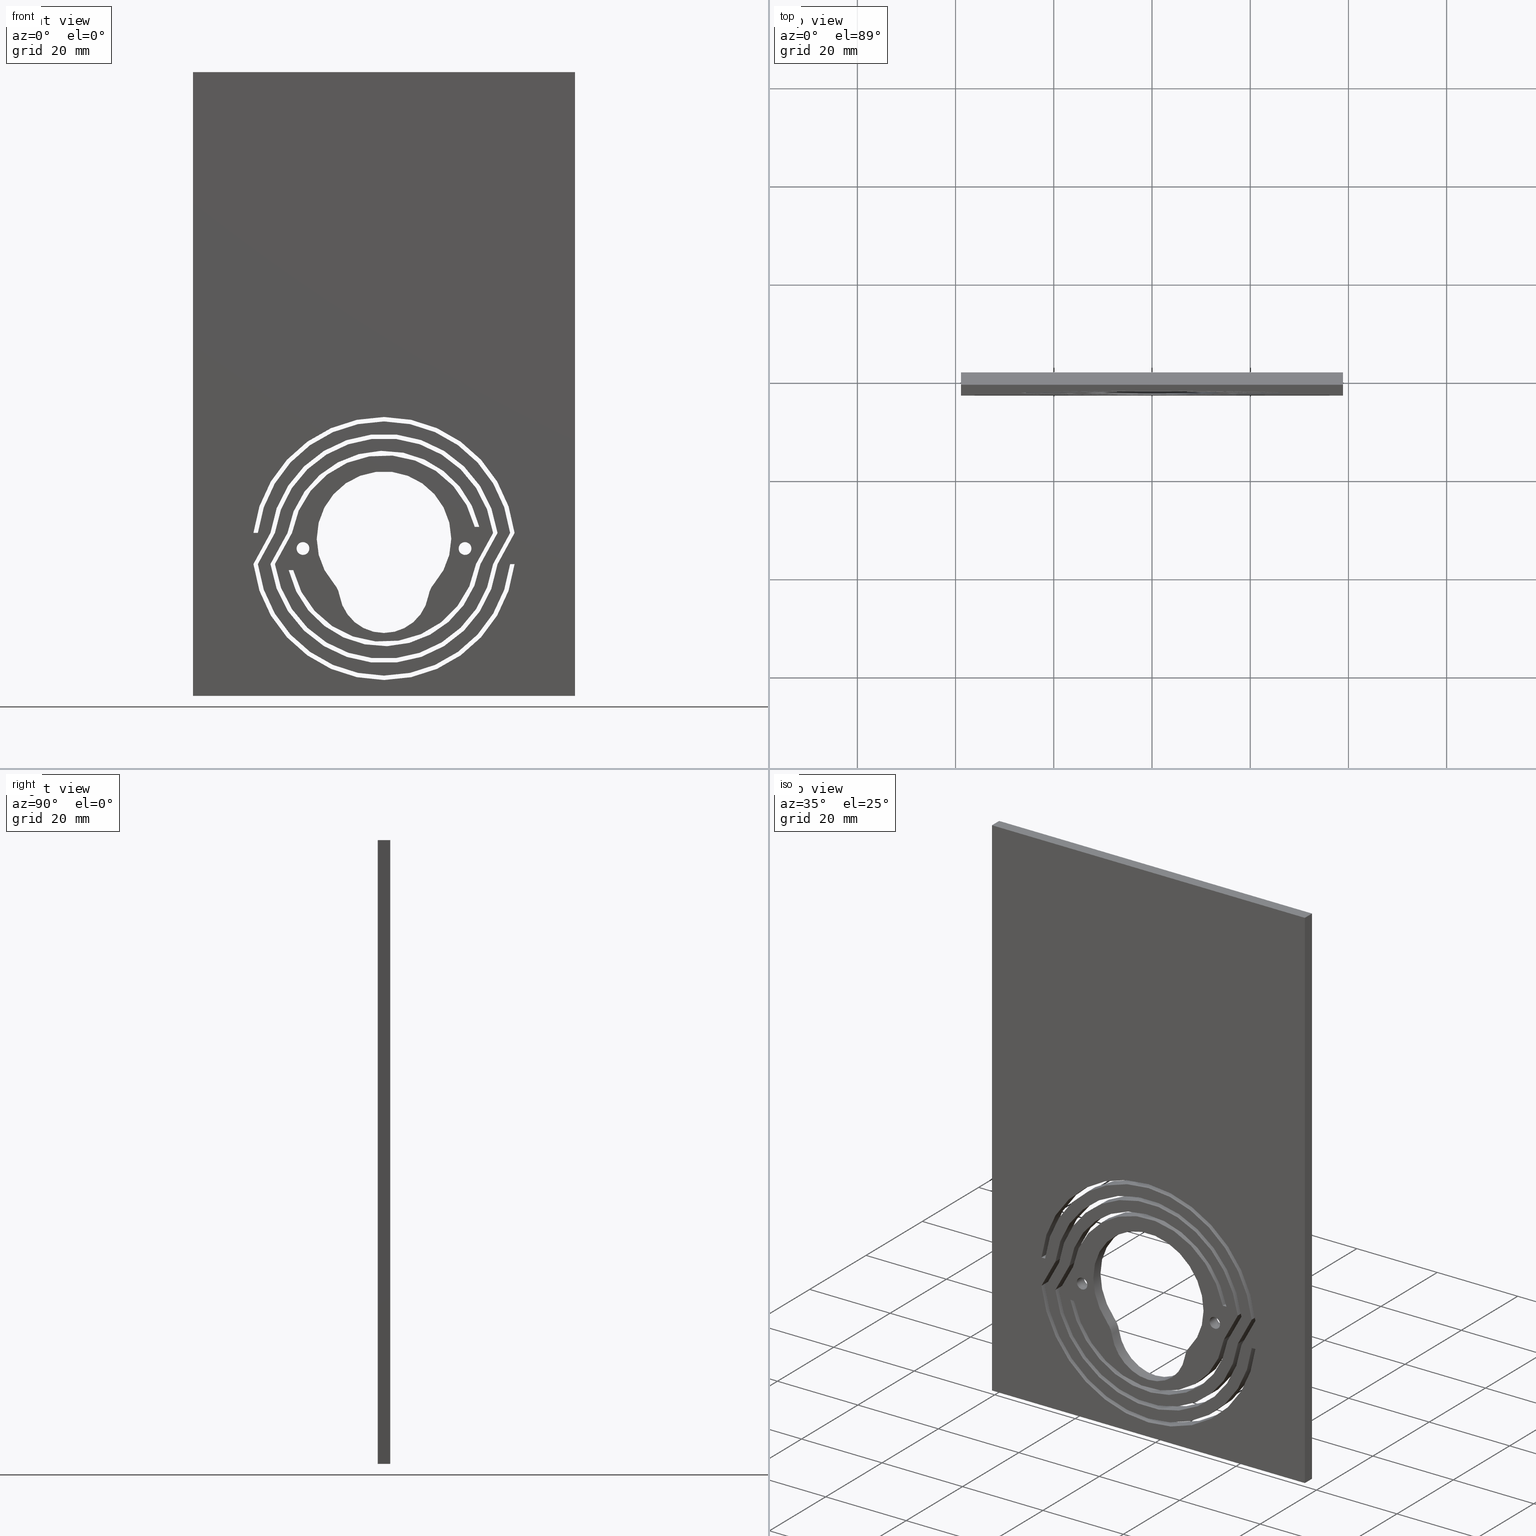
[diagram: canonical four-view strip — front | top / right | iso, engineering-drawing reading convention]
A machine part, canonical four-view strip (front | top / right | iso — engineering-drawing reading convention). The complete STEP part file that produces these views, byte-faithful:
ISO-10303-21;
HEADER;
/* Generated by software containing ST-Developer
 * from STEP Tools, Inc. (www.steptools.com) 
 */

FILE_DESCRIPTION(
/* description */ (''),
/* implementation_level */ '2;1');

FILE_NAME(
/* name */ 'panel_low_v66.step',
/* time_stamp */ '2024-05-29T17:00:07-04:00',
/* author */ (''),
/* organization */ (''),
/* preprocessor_version */ 'ST-DEVELOPER v20',
/* originating_system */ 'Autodesk Translation Framework v13.14.0.145',

/* authorisation */ '');

FILE_SCHEMA (('AUTOMOTIVE_DESIGN { 1 0 10303 214 3 1 1 }'));
ENDSEC;

DATA;
#10=MECHANICAL_DESIGN_GEOMETRIC_PRESENTATION_REPRESENTATION('',(#17),#1243);
#11=ITEM_DEFINED_TRANSFORMATION($,$,#739,#812);
#12=(
REPRESENTATION_RELATIONSHIP($,$,#1254,#1253)
REPRESENTATION_RELATIONSHIP_WITH_TRANSFORMATION(#11)
SHAPE_REPRESENTATION_RELATIONSHIP()
);
#13=CONTEXT_DEPENDENT_SHAPE_REPRESENTATION(#12,#1252);
#14=NEXT_ASSEMBLY_USAGE_OCCURRENCE('panel:1','panel:1','panel:1',#1256,
#1257,'panel:1');
#15=SHAPE_REPRESENTATION_RELATIONSHIP('SRR','None',#1254,#16);
#16=ADVANCED_BREP_SHAPE_REPRESENTATION('',(#18),#1242);
#17=STYLED_ITEM('',(#1267),#18);
#18=MANIFOLD_SOLID_BREP('Body5',#725);
#19=FACE_BOUND('',#118,.T.);
#20=FACE_BOUND('',#119,.T.);
#21=FACE_BOUND('',#120,.T.);
#22=FACE_BOUND('',#121,.T.);
#23=FACE_BOUND('',#122,.T.);
#24=FACE_BOUND('',#124,.T.);
#25=FACE_BOUND('',#125,.T.);
#26=FACE_BOUND('',#126,.T.);
#27=FACE_BOUND('',#127,.T.);
#28=FACE_BOUND('',#128,.T.);
#29=PLANE('',#761);
#30=PLANE('',#765);
#31=PLANE('',#769);
#32=PLANE('',#773);
#33=PLANE('',#777);
#34=PLANE('',#781);
#35=PLANE('',#782);
#36=PLANE('',#786);
#37=PLANE('',#790);
#38=PLANE('',#794);
#39=PLANE('',#798);
#40=PLANE('',#802);
#41=PLANE('',#806);
#42=PLANE('',#807);
#43=PLANE('',#808);
#44=PLANE('',#809);
#45=PLANE('',#810);
#46=PLANE('',#811);
#47=FACE_OUTER_BOUND('',#83,.T.);
#48=FACE_OUTER_BOUND('',#84,.T.);
#49=FACE_OUTER_BOUND('',#85,.T.);
#50=FACE_OUTER_BOUND('',#86,.T.);
#51=FACE_OUTER_BOUND('',#87,.T.);
#52=FACE_OUTER_BOUND('',#88,.T.);
#53=FACE_OUTER_BOUND('',#89,.T.);
#54=FACE_OUTER_BOUND('',#90,.T.);
#55=FACE_OUTER_BOUND('',#91,.T.);
#56=FACE_OUTER_BOUND('',#92,.T.);
#57=FACE_OUTER_BOUND('',#93,.T.);
#58=FACE_OUTER_BOUND('',#94,.T.);
#59=FACE_OUTER_BOUND('',#95,.T.);
#60=FACE_OUTER_BOUND('',#96,.T.);
#61=FACE_OUTER_BOUND('',#97,.T.);
#62=FACE_OUTER_BOUND('',#98,.T.);
#63=FACE_OUTER_BOUND('',#99,.T.);
#64=FACE_OUTER_BOUND('',#100,.T.);
#65=FACE_OUTER_BOUND('',#101,.T.);
#66=FACE_OUTER_BOUND('',#102,.T.);
#67=FACE_OUTER_BOUND('',#103,.T.);
#68=FACE_OUTER_BOUND('',#104,.T.);
#69=FACE_OUTER_BOUND('',#105,.T.);
#70=FACE_OUTER_BOUND('',#106,.T.);
#71=FACE_OUTER_BOUND('',#107,.T.);
#72=FACE_OUTER_BOUND('',#108,.T.);
#73=FACE_OUTER_BOUND('',#109,.T.);
#74=FACE_OUTER_BOUND('',#110,.T.);
#75=FACE_OUTER_BOUND('',#111,.T.);
#76=FACE_OUTER_BOUND('',#112,.T.);
#77=FACE_OUTER_BOUND('',#113,.T.);
#78=FACE_OUTER_BOUND('',#114,.T.);
#79=FACE_OUTER_BOUND('',#115,.T.);
#80=FACE_OUTER_BOUND('',#116,.T.);
#81=FACE_OUTER_BOUND('',#117,.T.);
#82=FACE_OUTER_BOUND('',#123,.T.);
#83=EDGE_LOOP('',(#467,#468,#469,#470));
#84=EDGE_LOOP('',(#471,#472,#473,#474));
#85=EDGE_LOOP('',(#475,#476,#477,#478));
#86=EDGE_LOOP('',(#479,#480,#481,#482));
#87=EDGE_LOOP('',(#483,#484,#485,#486));
#88=EDGE_LOOP('',(#487,#488,#489,#490));
#89=EDGE_LOOP('',(#491,#492,#493,#494));
#90=EDGE_LOOP('',(#495,#496,#497,#498));
#91=EDGE_LOOP('',(#499,#500,#501,#502));
#92=EDGE_LOOP('',(#503,#504,#505,#506));
#93=EDGE_LOOP('',(#507,#508,#509,#510));
#94=EDGE_LOOP('',(#511,#512,#513,#514));
#95=EDGE_LOOP('',(#515,#516,#517,#518));
#96=EDGE_LOOP('',(#519,#520,#521,#522));
#97=EDGE_LOOP('',(#523,#524,#525,#526));
#98=EDGE_LOOP('',(#527,#528,#529,#530));
#99=EDGE_LOOP('',(#531,#532,#533,#534));
#100=EDGE_LOOP('',(#535,#536,#537,#538));
#101=EDGE_LOOP('',(#539,#540,#541,#542));
#102=EDGE_LOOP('',(#543,#544,#545,#546));
#103=EDGE_LOOP('',(#547,#548,#549,#550));
#104=EDGE_LOOP('',(#551,#552,#553,#554));
#105=EDGE_LOOP('',(#555,#556,#557,#558));
#106=EDGE_LOOP('',(#559,#560,#561,#562));
#107=EDGE_LOOP('',(#563,#564,#565,#566));
#108=EDGE_LOOP('',(#567,#568,#569,#570));
#109=EDGE_LOOP('',(#571,#572,#573,#574));
#110=EDGE_LOOP('',(#575,#576,#577,#578));
#111=EDGE_LOOP('',(#579,#580,#581,#582));
#112=EDGE_LOOP('',(#583,#584,#585,#586));
#113=EDGE_LOOP('',(#587,#588,#589,#590));
#114=EDGE_LOOP('',(#591,#592,#593,#594));
#115=EDGE_LOOP('',(#595,#596,#597,#598));
#116=EDGE_LOOP('',(#599,#600,#601,#602));
#117=EDGE_LOOP('',(#603,#604,#605,#606));
#118=EDGE_LOOP('',(#607));
#119=EDGE_LOOP('',(#608));
#120=EDGE_LOOP('',(#609,#610,#611,#612));
#121=EDGE_LOOP('',(#613,#614,#615,#616,#617,#618,#619,#620,#621,#622,#623,
#624));
#122=EDGE_LOOP('',(#625,#626,#627,#628,#629,#630,#631,#632,#633,#634,#635,
#636));
#123=EDGE_LOOP('',(#637,#638,#639,#640));
#124=EDGE_LOOP('',(#641));
#125=EDGE_LOOP('',(#642));
#126=EDGE_LOOP('',(#643,#644,#645,#646));
#127=EDGE_LOOP('',(#647,#648,#649,#650,#651,#652,#653,#654,#655,#656,#657,
#658));
#128=EDGE_LOOP('',(#659,#660,#661,#662,#663,#664,#665,#666,#667,#668,#669,
#670));
#129=LINE('',#1035,#195);
#130=LINE('',#1041,#196);
#131=LINE('',#1048,#197);
#132=LINE('',#1051,#198);
#133=LINE('',#1057,#199);
#134=LINE('',#1063,#200);
#135=LINE('',#1072,#201);
#136=LINE('',#1075,#202);
#137=LINE('',#1078,#203);
#138=LINE('',#1080,#204);
#139=LINE('',#1081,#205);
#140=LINE('',#1087,#206);
#141=LINE('',#1090,#207);
#142=LINE('',#1092,#208);
#143=LINE('',#1093,#209);
#144=LINE('',#1099,#210);
#145=LINE('',#1102,#211);
#146=LINE('',#1104,#212);
#147=LINE('',#1105,#213);
#148=LINE('',#1111,#214);
#149=LINE('',#1114,#215);
#150=LINE('',#1116,#216);
#151=LINE('',#1117,#217);
#152=LINE('',#1123,#218);
#153=LINE('',#1126,#219);
#154=LINE('',#1128,#220);
#155=LINE('',#1129,#221);
#156=LINE('',#1135,#222);
#157=LINE('',#1137,#223);
#158=LINE('',#1138,#224);
#159=LINE('',#1142,#225);
#160=LINE('',#1144,#226);
#161=LINE('',#1146,#227);
#162=LINE('',#1147,#228);
#163=LINE('',#1153,#229);
#164=LINE('',#1156,#230);
#165=LINE('',#1158,#231);
#166=LINE('',#1159,#232);
#167=LINE('',#1165,#233);
#168=LINE('',#1168,#234);
#169=LINE('',#1170,#235);
#170=LINE('',#1171,#236);
#171=LINE('',#1177,#237);
#172=LINE('',#1180,#238);
#173=LINE('',#1182,#239);
#174=LINE('',#1183,#240);
#175=LINE('',#1189,#241);
#176=LINE('',#1192,#242);
#177=LINE('',#1194,#243);
#178=LINE('',#1195,#244);
#179=LINE('',#1201,#245);
#180=LINE('',#1204,#246);
#181=LINE('',#1206,#247);
#182=LINE('',#1207,#248);
#183=LINE('',#1214,#249);
#184=LINE('',#1216,#250);
#185=LINE('',#1218,#251);
#186=LINE('',#1219,#252);
#187=LINE('',#1222,#253);
#188=LINE('',#1224,#254);
#189=LINE('',#1225,#255);
#190=LINE('',#1228,#256);
#191=LINE('',#1230,#257);
#192=LINE('',#1231,#258);
#193=LINE('',#1233,#259);
#194=LINE('',#1234,#260);
#195=VECTOR('',#821,1.3);
#196=VECTOR('',#828,1.3);
#197=VECTOR('',#835,10.);
#198=VECTOR('',#838,10.);
#199=VECTOR('',#845,10.);
#200=VECTOR('',#852,10.);
#201=VECTOR('',#863,10.);
#202=VECTOR('',#866,10.);
#203=VECTOR('',#869,10.);
#204=VECTOR('',#870,10.);
#205=VECTOR('',#871,10.);
#206=VECTOR('',#878,10.);
#207=VECTOR('',#881,10.);
#208=VECTOR('',#882,10.);
#209=VECTOR('',#883,10.);
#210=VECTOR('',#890,10.);
#211=VECTOR('',#893,10.);
#212=VECTOR('',#894,10.);
#213=VECTOR('',#895,10.);
#214=VECTOR('',#902,10.);
#215=VECTOR('',#905,10.);
#216=VECTOR('',#906,10.);
#217=VECTOR('',#907,10.);
#218=VECTOR('',#914,10.);
#219=VECTOR('',#917,10.);
#220=VECTOR('',#918,10.);
#221=VECTOR('',#919,10.);
#222=VECTOR('',#926,10.);
#223=VECTOR('',#929,10.);
#224=VECTOR('',#930,10.);
#225=VECTOR('',#933,10.);
#226=VECTOR('',#934,10.);
#227=VECTOR('',#935,10.);
#228=VECTOR('',#936,10.);
#229=VECTOR('',#943,10.);
#230=VECTOR('',#946,10.);
#231=VECTOR('',#947,10.);
#232=VECTOR('',#948,10.);
#233=VECTOR('',#955,10.);
#234=VECTOR('',#958,10.);
#235=VECTOR('',#959,10.);
#236=VECTOR('',#960,10.);
#237=VECTOR('',#967,10.);
#238=VECTOR('',#970,10.);
#239=VECTOR('',#971,10.);
#240=VECTOR('',#972,10.);
#241=VECTOR('',#979,10.);
#242=VECTOR('',#982,10.);
#243=VECTOR('',#983,10.);
#244=VECTOR('',#984,10.);
#245=VECTOR('',#991,10.);
#246=VECTOR('',#994,10.);
#247=VECTOR('',#995,10.);
#248=VECTOR('',#996,10.);
#249=VECTOR('',#1005,10.);
#250=VECTOR('',#1006,10.);
#251=VECTOR('',#1007,10.);
#252=VECTOR('',#1008,10.);
#253=VECTOR('',#1011,10.);
#254=VECTOR('',#1012,10.);
#255=VECTOR('',#1013,10.);
#256=VECTOR('',#1016,10.);
#257=VECTOR('',#1017,10.);
#258=VECTOR('',#1018,10.);
#259=VECTOR('',#1021,10.);
#260=VECTOR('',#1022,10.);
#261=CIRCLE('',#741,1.3);
#262=CIRCLE('',#742,1.3);
#263=CIRCLE('',#744,1.3);
#264=CIRCLE('',#745,1.3);
#265=CIRCLE('',#747,4.8);
#266=CIRCLE('',#748,4.8);
#267=CIRCLE('',#750,13.7);
#268=CIRCLE('',#751,13.7);
#269=CIRCLE('',#753,4.8);
#270=CIRCLE('',#754,4.8);
#271=CIRCLE('',#756,9.20000000000001);
#272=CIRCLE('',#757,9.20000000000001);
#273=CIRCLE('',#759,19.9);
#274=CIRCLE('',#760,19.9);
#275=CIRCLE('',#763,19.);
#276=CIRCLE('',#764,19.);
#277=CIRCLE('',#767,22.44);
#278=CIRCLE('',#768,22.44);
#279=CIRCLE('',#771,25.88);
#280=CIRCLE('',#772,25.88);
#281=CIRCLE('',#775,26.78);
#282=CIRCLE('',#776,26.78);
#283=CIRCLE('',#779,23.34);
#284=CIRCLE('',#780,23.34);
#285=CIRCLE('',#784,25.88);
#286=CIRCLE('',#785,25.88);
#287=CIRCLE('',#788,26.78);
#288=CIRCLE('',#789,26.78);
#289=CIRCLE('',#792,23.34);
#290=CIRCLE('',#793,23.34);
#291=CIRCLE('',#796,19.9);
#292=CIRCLE('',#797,19.9);
#293=CIRCLE('',#800,19.);
#294=CIRCLE('',#801,19.);
#295=CIRCLE('',#804,22.44);
#296=CIRCLE('',#805,22.44);
#297=VERTEX_POINT('',#1032);
#298=VERTEX_POINT('',#1034);
#299=VERTEX_POINT('',#1038);
#300=VERTEX_POINT('',#1040);
#301=VERTEX_POINT('',#1044);
#302=VERTEX_POINT('',#1045);
#303=VERTEX_POINT('',#1047);
#304=VERTEX_POINT('',#1049);
#305=VERTEX_POINT('',#1053);
#306=VERTEX_POINT('',#1055);
#307=VERTEX_POINT('',#1059);
#308=VERTEX_POINT('',#1061);
#309=VERTEX_POINT('',#1068);
#310=VERTEX_POINT('',#1069);
#311=VERTEX_POINT('',#1071);
#312=VERTEX_POINT('',#1073);
#313=VERTEX_POINT('',#1077);
#314=VERTEX_POINT('',#1079);
#315=VERTEX_POINT('',#1083);
#316=VERTEX_POINT('',#1085);
#317=VERTEX_POINT('',#1089);
#318=VERTEX_POINT('',#1091);
#319=VERTEX_POINT('',#1095);
#320=VERTEX_POINT('',#1097);
#321=VERTEX_POINT('',#1101);
#322=VERTEX_POINT('',#1103);
#323=VERTEX_POINT('',#1107);
#324=VERTEX_POINT('',#1109);
#325=VERTEX_POINT('',#1113);
#326=VERTEX_POINT('',#1115);
#327=VERTEX_POINT('',#1119);
#328=VERTEX_POINT('',#1121);
#329=VERTEX_POINT('',#1125);
#330=VERTEX_POINT('',#1127);
#331=VERTEX_POINT('',#1131);
#332=VERTEX_POINT('',#1133);
#333=VERTEX_POINT('',#1140);
#334=VERTEX_POINT('',#1141);
#335=VERTEX_POINT('',#1143);
#336=VERTEX_POINT('',#1145);
#337=VERTEX_POINT('',#1149);
#338=VERTEX_POINT('',#1151);
#339=VERTEX_POINT('',#1155);
#340=VERTEX_POINT('',#1157);
#341=VERTEX_POINT('',#1161);
#342=VERTEX_POINT('',#1163);
#343=VERTEX_POINT('',#1167);
#344=VERTEX_POINT('',#1169);
#345=VERTEX_POINT('',#1173);
#346=VERTEX_POINT('',#1175);
#347=VERTEX_POINT('',#1179);
#348=VERTEX_POINT('',#1181);
#349=VERTEX_POINT('',#1185);
#350=VERTEX_POINT('',#1187);
#351=VERTEX_POINT('',#1191);
#352=VERTEX_POINT('',#1193);
#353=VERTEX_POINT('',#1197);
#354=VERTEX_POINT('',#1199);
#355=VERTEX_POINT('',#1203);
#356=VERTEX_POINT('',#1205);
#357=VERTEX_POINT('',#1212);
#358=VERTEX_POINT('',#1213);
#359=VERTEX_POINT('',#1215);
#360=VERTEX_POINT('',#1217);
#361=VERTEX_POINT('',#1221);
#362=VERTEX_POINT('',#1223);
#363=VERTEX_POINT('',#1227);
#364=VERTEX_POINT('',#1229);
#365=EDGE_CURVE('',#297,#297,#261,.T.);
#366=EDGE_CURVE('',#297,#298,#129,.T.);
#367=EDGE_CURVE('',#298,#298,#262,.T.);
#368=EDGE_CURVE('',#299,#299,#263,.T.);
#369=EDGE_CURVE('',#299,#300,#130,.T.);
#370=EDGE_CURVE('',#300,#300,#264,.T.);
#371=EDGE_CURVE('',#301,#302,#265,.T.);
#372=EDGE_CURVE('',#303,#301,#131,.T.);
#373=EDGE_CURVE('',#304,#303,#266,.T.);
#374=EDGE_CURVE('',#304,#302,#132,.T.);
#375=EDGE_CURVE('',#302,#305,#267,.T.);
#376=EDGE_CURVE('',#306,#304,#268,.T.);
#377=EDGE_CURVE('',#306,#305,#133,.T.);
#378=EDGE_CURVE('',#305,#307,#269,.T.);
#379=EDGE_CURVE('',#308,#306,#270,.T.);
#380=EDGE_CURVE('',#308,#307,#134,.T.);
#381=EDGE_CURVE('',#307,#301,#271,.T.);
#382=EDGE_CURVE('',#303,#308,#272,.T.);
#383=EDGE_CURVE('',#309,#310,#273,.T.);
#384=EDGE_CURVE('',#311,#309,#135,.T.);
#385=EDGE_CURVE('',#312,#311,#274,.T.);
#386=EDGE_CURVE('',#312,#310,#136,.T.);
#387=EDGE_CURVE('',#310,#313,#137,.T.);
#388=EDGE_CURVE('',#314,#312,#138,.T.);
#389=EDGE_CURVE('',#314,#313,#139,.T.);
#390=EDGE_CURVE('',#313,#315,#275,.T.);
#391=EDGE_CURVE('',#316,#314,#276,.T.);
#392=EDGE_CURVE('',#316,#315,#140,.T.);
#393=EDGE_CURVE('',#315,#317,#141,.T.);
#394=EDGE_CURVE('',#318,#316,#142,.T.);
#395=EDGE_CURVE('',#318,#317,#143,.T.);
#396=EDGE_CURVE('',#317,#319,#277,.T.);
#397=EDGE_CURVE('',#320,#318,#278,.T.);
#398=EDGE_CURVE('',#320,#319,#144,.T.);
#399=EDGE_CURVE('',#319,#321,#145,.T.);
#400=EDGE_CURVE('',#322,#320,#146,.T.);
#401=EDGE_CURVE('',#322,#321,#147,.T.);
#402=EDGE_CURVE('',#321,#323,#279,.T.);
#403=EDGE_CURVE('',#324,#322,#280,.T.);
#404=EDGE_CURVE('',#324,#323,#148,.T.);
#405=EDGE_CURVE('',#323,#325,#149,.T.);
#406=EDGE_CURVE('',#326,#324,#150,.T.);
#407=EDGE_CURVE('',#326,#325,#151,.T.);
#408=EDGE_CURVE('',#325,#327,#281,.T.);
#409=EDGE_CURVE('',#328,#326,#282,.T.);
#410=EDGE_CURVE('',#328,#327,#152,.T.);
#411=EDGE_CURVE('',#327,#329,#153,.T.);
#412=EDGE_CURVE('',#330,#328,#154,.T.);
#413=EDGE_CURVE('',#330,#329,#155,.T.);
#414=EDGE_CURVE('',#329,#331,#283,.T.);
#415=EDGE_CURVE('',#332,#330,#284,.T.);
#416=EDGE_CURVE('',#332,#331,#156,.T.);
#417=EDGE_CURVE('',#331,#309,#157,.T.);
#418=EDGE_CURVE('',#311,#332,#158,.T.);
#419=EDGE_CURVE('',#333,#334,#159,.T.);
#420=EDGE_CURVE('',#335,#333,#160,.T.);
#421=EDGE_CURVE('',#336,#335,#161,.T.);
#422=EDGE_CURVE('',#336,#334,#162,.T.);
#423=EDGE_CURVE('',#334,#337,#285,.T.);
#424=EDGE_CURVE('',#338,#336,#286,.T.);
#425=EDGE_CURVE('',#338,#337,#163,.T.);
#426=EDGE_CURVE('',#337,#339,#164,.T.);
#427=EDGE_CURVE('',#340,#338,#165,.T.);
#428=EDGE_CURVE('',#340,#339,#166,.T.);
#429=EDGE_CURVE('',#339,#341,#287,.T.);
#430=EDGE_CURVE('',#342,#340,#288,.T.);
#431=EDGE_CURVE('',#342,#341,#167,.T.);
#432=EDGE_CURVE('',#341,#343,#168,.T.);
#433=EDGE_CURVE('',#344,#342,#169,.T.);
#434=EDGE_CURVE('',#344,#343,#170,.T.);
#435=EDGE_CURVE('',#343,#345,#289,.T.);
#436=EDGE_CURVE('',#346,#344,#290,.T.);
#437=EDGE_CURVE('',#346,#345,#171,.T.);
#438=EDGE_CURVE('',#345,#347,#172,.T.);
#439=EDGE_CURVE('',#348,#346,#173,.T.);
#440=EDGE_CURVE('',#348,#347,#174,.T.);
#441=EDGE_CURVE('',#347,#349,#291,.T.);
#442=EDGE_CURVE('',#350,#348,#292,.T.);
#443=EDGE_CURVE('',#350,#349,#175,.T.);
#444=EDGE_CURVE('',#349,#351,#176,.T.);
#445=EDGE_CURVE('',#352,#350,#177,.T.);
#446=EDGE_CURVE('',#352,#351,#178,.T.);
#447=EDGE_CURVE('',#351,#353,#293,.T.);
#448=EDGE_CURVE('',#354,#352,#294,.T.);
#449=EDGE_CURVE('',#354,#353,#179,.T.);
#450=EDGE_CURVE('',#353,#355,#180,.T.);
#451=EDGE_CURVE('',#356,#354,#181,.T.);
#452=EDGE_CURVE('',#356,#355,#182,.T.);
#453=EDGE_CURVE('',#355,#333,#295,.T.);
#454=EDGE_CURVE('',#335,#356,#296,.T.);
#455=EDGE_CURVE('',#357,#358,#183,.T.);
#456=EDGE_CURVE('',#358,#359,#184,.T.);
#457=EDGE_CURVE('',#360,#359,#185,.T.);
#458=EDGE_CURVE('',#357,#360,#186,.T.);
#459=EDGE_CURVE('',#361,#357,#187,.T.);
#460=EDGE_CURVE('',#362,#360,#188,.T.);
#461=EDGE_CURVE('',#361,#362,#189,.T.);
#462=EDGE_CURVE('',#363,#361,#190,.T.);
#463=EDGE_CURVE('',#364,#362,#191,.T.);
#464=EDGE_CURVE('',#363,#364,#192,.T.);
#465=EDGE_CURVE('',#358,#363,#193,.T.);
#466=EDGE_CURVE('',#359,#364,#194,.T.);
#467=ORIENTED_EDGE('',*,*,#365,.F.);
#468=ORIENTED_EDGE('',*,*,#366,.T.);
#469=ORIENTED_EDGE('',*,*,#367,.F.);
#470=ORIENTED_EDGE('',*,*,#366,.F.);
#471=ORIENTED_EDGE('',*,*,#368,.F.);
#472=ORIENTED_EDGE('',*,*,#369,.T.);
#473=ORIENTED_EDGE('',*,*,#370,.F.);
#474=ORIENTED_EDGE('',*,*,#369,.F.);
#475=ORIENTED_EDGE('',*,*,#371,.F.);
#476=ORIENTED_EDGE('',*,*,#372,.F.);
#477=ORIENTED_EDGE('',*,*,#373,.F.);
#478=ORIENTED_EDGE('',*,*,#374,.T.);
#479=ORIENTED_EDGE('',*,*,#375,.F.);
#480=ORIENTED_EDGE('',*,*,#374,.F.);
#481=ORIENTED_EDGE('',*,*,#376,.F.);
#482=ORIENTED_EDGE('',*,*,#377,.T.);
#483=ORIENTED_EDGE('',*,*,#378,.F.);
#484=ORIENTED_EDGE('',*,*,#377,.F.);
#485=ORIENTED_EDGE('',*,*,#379,.F.);
#486=ORIENTED_EDGE('',*,*,#380,.T.);
#487=ORIENTED_EDGE('',*,*,#381,.F.);
#488=ORIENTED_EDGE('',*,*,#380,.F.);
#489=ORIENTED_EDGE('',*,*,#382,.F.);
#490=ORIENTED_EDGE('',*,*,#372,.T.);
#491=ORIENTED_EDGE('',*,*,#383,.F.);
#492=ORIENTED_EDGE('',*,*,#384,.F.);
#493=ORIENTED_EDGE('',*,*,#385,.F.);
#494=ORIENTED_EDGE('',*,*,#386,.T.);
#495=ORIENTED_EDGE('',*,*,#387,.F.);
#496=ORIENTED_EDGE('',*,*,#386,.F.);
#497=ORIENTED_EDGE('',*,*,#388,.F.);
#498=ORIENTED_EDGE('',*,*,#389,.T.);
#499=ORIENTED_EDGE('',*,*,#390,.F.);
#500=ORIENTED_EDGE('',*,*,#389,.F.);
#501=ORIENTED_EDGE('',*,*,#391,.F.);
#502=ORIENTED_EDGE('',*,*,#392,.T.);
#503=ORIENTED_EDGE('',*,*,#393,.F.);
#504=ORIENTED_EDGE('',*,*,#392,.F.);
#505=ORIENTED_EDGE('',*,*,#394,.F.);
#506=ORIENTED_EDGE('',*,*,#395,.T.);
#507=ORIENTED_EDGE('',*,*,#396,.F.);
#508=ORIENTED_EDGE('',*,*,#395,.F.);
#509=ORIENTED_EDGE('',*,*,#397,.F.);
#510=ORIENTED_EDGE('',*,*,#398,.T.);
#511=ORIENTED_EDGE('',*,*,#399,.F.);
#512=ORIENTED_EDGE('',*,*,#398,.F.);
#513=ORIENTED_EDGE('',*,*,#400,.F.);
#514=ORIENTED_EDGE('',*,*,#401,.T.);
#515=ORIENTED_EDGE('',*,*,#402,.F.);
#516=ORIENTED_EDGE('',*,*,#401,.F.);
#517=ORIENTED_EDGE('',*,*,#403,.F.);
#518=ORIENTED_EDGE('',*,*,#404,.T.);
#519=ORIENTED_EDGE('',*,*,#405,.F.);
#520=ORIENTED_EDGE('',*,*,#404,.F.);
#521=ORIENTED_EDGE('',*,*,#406,.F.);
#522=ORIENTED_EDGE('',*,*,#407,.T.);
#523=ORIENTED_EDGE('',*,*,#408,.F.);
#524=ORIENTED_EDGE('',*,*,#407,.F.);
#525=ORIENTED_EDGE('',*,*,#409,.F.);
#526=ORIENTED_EDGE('',*,*,#410,.T.);
#527=ORIENTED_EDGE('',*,*,#411,.F.);
#528=ORIENTED_EDGE('',*,*,#410,.F.);
#529=ORIENTED_EDGE('',*,*,#412,.F.);
#530=ORIENTED_EDGE('',*,*,#413,.T.);
#531=ORIENTED_EDGE('',*,*,#414,.F.);
#532=ORIENTED_EDGE('',*,*,#413,.F.);
#533=ORIENTED_EDGE('',*,*,#415,.F.);
#534=ORIENTED_EDGE('',*,*,#416,.T.);
#535=ORIENTED_EDGE('',*,*,#417,.F.);
#536=ORIENTED_EDGE('',*,*,#416,.F.);
#537=ORIENTED_EDGE('',*,*,#418,.F.);
#538=ORIENTED_EDGE('',*,*,#384,.T.);
#539=ORIENTED_EDGE('',*,*,#419,.F.);
#540=ORIENTED_EDGE('',*,*,#420,.F.);
#541=ORIENTED_EDGE('',*,*,#421,.F.);
#542=ORIENTED_EDGE('',*,*,#422,.T.);
#543=ORIENTED_EDGE('',*,*,#423,.F.);
#544=ORIENTED_EDGE('',*,*,#422,.F.);
#545=ORIENTED_EDGE('',*,*,#424,.F.);
#546=ORIENTED_EDGE('',*,*,#425,.T.);
#547=ORIENTED_EDGE('',*,*,#426,.F.);
#548=ORIENTED_EDGE('',*,*,#425,.F.);
#549=ORIENTED_EDGE('',*,*,#427,.F.);
#550=ORIENTED_EDGE('',*,*,#428,.T.);
#551=ORIENTED_EDGE('',*,*,#429,.F.);
#552=ORIENTED_EDGE('',*,*,#428,.F.);
#553=ORIENTED_EDGE('',*,*,#430,.F.);
#554=ORIENTED_EDGE('',*,*,#431,.T.);
#555=ORIENTED_EDGE('',*,*,#432,.F.);
#556=ORIENTED_EDGE('',*,*,#431,.F.);
#557=ORIENTED_EDGE('',*,*,#433,.F.);
#558=ORIENTED_EDGE('',*,*,#434,.T.);
#559=ORIENTED_EDGE('',*,*,#435,.F.);
#560=ORIENTED_EDGE('',*,*,#434,.F.);
#561=ORIENTED_EDGE('',*,*,#436,.F.);
#562=ORIENTED_EDGE('',*,*,#437,.T.);
#563=ORIENTED_EDGE('',*,*,#438,.F.);
#564=ORIENTED_EDGE('',*,*,#437,.F.);
#565=ORIENTED_EDGE('',*,*,#439,.F.);
#566=ORIENTED_EDGE('',*,*,#440,.T.);
#567=ORIENTED_EDGE('',*,*,#441,.F.);
#568=ORIENTED_EDGE('',*,*,#440,.F.);
#569=ORIENTED_EDGE('',*,*,#442,.F.);
#570=ORIENTED_EDGE('',*,*,#443,.T.);
#571=ORIENTED_EDGE('',*,*,#444,.F.);
#572=ORIENTED_EDGE('',*,*,#443,.F.);
#573=ORIENTED_EDGE('',*,*,#445,.F.);
#574=ORIENTED_EDGE('',*,*,#446,.T.);
#575=ORIENTED_EDGE('',*,*,#447,.F.);
#576=ORIENTED_EDGE('',*,*,#446,.F.);
#577=ORIENTED_EDGE('',*,*,#448,.F.);
#578=ORIENTED_EDGE('',*,*,#449,.T.);
#579=ORIENTED_EDGE('',*,*,#450,.F.);
#580=ORIENTED_EDGE('',*,*,#449,.F.);
#581=ORIENTED_EDGE('',*,*,#451,.F.);
#582=ORIENTED_EDGE('',*,*,#452,.T.);
#583=ORIENTED_EDGE('',*,*,#453,.F.);
#584=ORIENTED_EDGE('',*,*,#452,.F.);
#585=ORIENTED_EDGE('',*,*,#454,.F.);
#586=ORIENTED_EDGE('',*,*,#420,.T.);
#587=ORIENTED_EDGE('',*,*,#455,.T.);
#588=ORIENTED_EDGE('',*,*,#456,.T.);
#589=ORIENTED_EDGE('',*,*,#457,.F.);
#590=ORIENTED_EDGE('',*,*,#458,.F.);
#591=ORIENTED_EDGE('',*,*,#459,.T.);
#592=ORIENTED_EDGE('',*,*,#458,.T.);
#593=ORIENTED_EDGE('',*,*,#460,.F.);
#594=ORIENTED_EDGE('',*,*,#461,.F.);
#595=ORIENTED_EDGE('',*,*,#462,.T.);
#596=ORIENTED_EDGE('',*,*,#461,.T.);
#597=ORIENTED_EDGE('',*,*,#463,.F.);
#598=ORIENTED_EDGE('',*,*,#464,.F.);
#599=ORIENTED_EDGE('',*,*,#465,.T.);
#600=ORIENTED_EDGE('',*,*,#464,.T.);
#601=ORIENTED_EDGE('',*,*,#466,.F.);
#602=ORIENTED_EDGE('',*,*,#456,.F.);
#603=ORIENTED_EDGE('',*,*,#465,.F.);
#604=ORIENTED_EDGE('',*,*,#455,.F.);
#605=ORIENTED_EDGE('',*,*,#459,.F.);
#606=ORIENTED_EDGE('',*,*,#462,.F.);
#607=ORIENTED_EDGE('',*,*,#365,.T.);
#608=ORIENTED_EDGE('',*,*,#368,.T.);
#609=ORIENTED_EDGE('',*,*,#373,.T.);
#610=ORIENTED_EDGE('',*,*,#382,.T.);
#611=ORIENTED_EDGE('',*,*,#379,.T.);
#612=ORIENTED_EDGE('',*,*,#376,.T.);
#613=ORIENTED_EDGE('',*,*,#385,.T.);
#614=ORIENTED_EDGE('',*,*,#418,.T.);
#615=ORIENTED_EDGE('',*,*,#415,.T.);
#616=ORIENTED_EDGE('',*,*,#412,.T.);
#617=ORIENTED_EDGE('',*,*,#409,.T.);
#618=ORIENTED_EDGE('',*,*,#406,.T.);
#619=ORIENTED_EDGE('',*,*,#403,.T.);
#620=ORIENTED_EDGE('',*,*,#400,.T.);
#621=ORIENTED_EDGE('',*,*,#397,.T.);
#622=ORIENTED_EDGE('',*,*,#394,.T.);
#623=ORIENTED_EDGE('',*,*,#391,.T.);
#624=ORIENTED_EDGE('',*,*,#388,.T.);
#625=ORIENTED_EDGE('',*,*,#421,.T.);
#626=ORIENTED_EDGE('',*,*,#454,.T.);
#627=ORIENTED_EDGE('',*,*,#451,.T.);
#628=ORIENTED_EDGE('',*,*,#448,.T.);
#629=ORIENTED_EDGE('',*,*,#445,.T.);
#630=ORIENTED_EDGE('',*,*,#442,.T.);
#631=ORIENTED_EDGE('',*,*,#439,.T.);
#632=ORIENTED_EDGE('',*,*,#436,.T.);
#633=ORIENTED_EDGE('',*,*,#433,.T.);
#634=ORIENTED_EDGE('',*,*,#430,.T.);
#635=ORIENTED_EDGE('',*,*,#427,.T.);
#636=ORIENTED_EDGE('',*,*,#424,.T.);
#637=ORIENTED_EDGE('',*,*,#466,.T.);
#638=ORIENTED_EDGE('',*,*,#463,.T.);
#639=ORIENTED_EDGE('',*,*,#460,.T.);
#640=ORIENTED_EDGE('',*,*,#457,.T.);
#641=ORIENTED_EDGE('',*,*,#367,.T.);
#642=ORIENTED_EDGE('',*,*,#370,.T.);
#643=ORIENTED_EDGE('',*,*,#371,.T.);
#644=ORIENTED_EDGE('',*,*,#375,.T.);
#645=ORIENTED_EDGE('',*,*,#378,.T.);
#646=ORIENTED_EDGE('',*,*,#381,.T.);
#647=ORIENTED_EDGE('',*,*,#383,.T.);
#648=ORIENTED_EDGE('',*,*,#387,.T.);
#649=ORIENTED_EDGE('',*,*,#390,.T.);
#650=ORIENTED_EDGE('',*,*,#393,.T.);
#651=ORIENTED_EDGE('',*,*,#396,.T.);
#652=ORIENTED_EDGE('',*,*,#399,.T.);
#653=ORIENTED_EDGE('',*,*,#402,.T.);
#654=ORIENTED_EDGE('',*,*,#405,.T.);
#655=ORIENTED_EDGE('',*,*,#408,.T.);
#656=ORIENTED_EDGE('',*,*,#411,.T.);
#657=ORIENTED_EDGE('',*,*,#414,.T.);
#658=ORIENTED_EDGE('',*,*,#417,.T.);
#659=ORIENTED_EDGE('',*,*,#419,.T.);
#660=ORIENTED_EDGE('',*,*,#423,.T.);
#661=ORIENTED_EDGE('',*,*,#426,.T.);
#662=ORIENTED_EDGE('',*,*,#429,.T.);
#663=ORIENTED_EDGE('',*,*,#432,.T.);
#664=ORIENTED_EDGE('',*,*,#435,.T.);
#665=ORIENTED_EDGE('',*,*,#438,.T.);
#666=ORIENTED_EDGE('',*,*,#441,.T.);
#667=ORIENTED_EDGE('',*,*,#444,.T.);
#668=ORIENTED_EDGE('',*,*,#447,.T.);
#669=ORIENTED_EDGE('',*,*,#450,.T.);
#670=ORIENTED_EDGE('',*,*,#453,.T.);
#671=CYLINDRICAL_SURFACE('',#740,1.3);
#672=CYLINDRICAL_SURFACE('',#743,1.3);
#673=CYLINDRICAL_SURFACE('',#746,4.8);
#674=CYLINDRICAL_SURFACE('',#749,13.7);
#675=CYLINDRICAL_SURFACE('',#752,4.8);
#676=CYLINDRICAL_SURFACE('',#755,9.20000000000001);
#677=CYLINDRICAL_SURFACE('',#758,19.9);
#678=CYLINDRICAL_SURFACE('',#762,19.);
#679=CYLINDRICAL_SURFACE('',#766,22.44);
#680=CYLINDRICAL_SURFACE('',#770,25.88);
#681=CYLINDRICAL_SURFACE('',#774,26.78);
#682=CYLINDRICAL_SURFACE('',#778,23.34);
#683=CYLINDRICAL_SURFACE('',#783,25.88);
#684=CYLINDRICAL_SURFACE('',#787,26.78);
#685=CYLINDRICAL_SURFACE('',#791,23.34);
#686=CYLINDRICAL_SURFACE('',#795,19.9);
#687=CYLINDRICAL_SURFACE('',#799,19.);
#688=CYLINDRICAL_SURFACE('',#803,22.44);
#689=ADVANCED_FACE('',(#47),#671,.F.);
#690=ADVANCED_FACE('',(#48),#672,.F.);
#691=ADVANCED_FACE('',(#49),#673,.T.);
#692=ADVANCED_FACE('',(#50),#674,.F.);
#693=ADVANCED_FACE('',(#51),#675,.T.);
#694=ADVANCED_FACE('',(#52),#676,.F.);
#695=ADVANCED_FACE('',(#53),#677,.F.);
#696=ADVANCED_FACE('',(#54),#29,.F.);
#697=ADVANCED_FACE('',(#55),#678,.T.);
#698=ADVANCED_FACE('',(#56),#30,.F.);
#699=ADVANCED_FACE('',(#57),#679,.T.);
#700=ADVANCED_FACE('',(#58),#31,.F.);
#701=ADVANCED_FACE('',(#59),#680,.T.);
#702=ADVANCED_FACE('',(#60),#32,.F.);
#703=ADVANCED_FACE('',(#61),#681,.F.);
#704=ADVANCED_FACE('',(#62),#33,.F.);
#705=ADVANCED_FACE('',(#63),#682,.F.);
#706=ADVANCED_FACE('',(#64),#34,.F.);
#707=ADVANCED_FACE('',(#65),#35,.F.);
#708=ADVANCED_FACE('',(#66),#683,.T.);
#709=ADVANCED_FACE('',(#67),#36,.F.);
#710=ADVANCED_FACE('',(#68),#684,.F.);
#711=ADVANCED_FACE('',(#69),#37,.F.);
#712=ADVANCED_FACE('',(#70),#685,.F.);
#713=ADVANCED_FACE('',(#71),#38,.F.);
#714=ADVANCED_FACE('',(#72),#686,.F.);
#715=ADVANCED_FACE('',(#73),#39,.F.);
#716=ADVANCED_FACE('',(#74),#687,.T.);
#717=ADVANCED_FACE('',(#75),#40,.F.);
#718=ADVANCED_FACE('',(#76),#688,.T.);
#719=ADVANCED_FACE('',(#77),#41,.T.);
#720=ADVANCED_FACE('',(#78),#42,.T.);
#721=ADVANCED_FACE('',(#79),#43,.T.);
#722=ADVANCED_FACE('',(#80),#44,.T.);
#723=ADVANCED_FACE('',(#81,#19,#20,#21,#22,#23),#45,.T.);
#724=ADVANCED_FACE('',(#82,#24,#25,#26,#27,#28),#46,.F.);
#725=CLOSED_SHELL('',(#689,#690,#691,#692,#693,#694,#695,#696,#697,#698,
#699,#700,#701,#702,#703,#704,#705,#706,#707,#708,#709,#710,#711,#712,#713,
#714,#715,#716,#717,#718,#719,#720,#721,#722,#723,#724));
#726=DERIVED_UNIT_ELEMENT(#728,1.);
#727=DERIVED_UNIT_ELEMENT(#1245,-3.);
#728=(
MASS_UNIT()
NAMED_UNIT(*)
SI_UNIT(.KILO.,.GRAM.)
);
#729=DERIVED_UNIT((#726,#727));
#730=MEASURE_REPRESENTATION_ITEM('density measure',
POSITIVE_RATIO_MEASURE(7850.),#729);
#731=PROPERTY_DEFINITION_REPRESENTATION(#736,#733);
#732=PROPERTY_DEFINITION_REPRESENTATION(#737,#734);
#733=REPRESENTATION('material name',(#735),#1242);
#734=REPRESENTATION('density',(#730),#1242);
#735=DESCRIPTIVE_REPRESENTATION_ITEM('Steel','Steel');
#736=PROPERTY_DEFINITION('material property','material name',#1257);
#737=PROPERTY_DEFINITION('material property','density of part',#1257);
#738=AXIS2_PLACEMENT_3D('',#1029,#813,#814);
#739=AXIS2_PLACEMENT_3D('',#1030,#815,#816);
#740=AXIS2_PLACEMENT_3D('',#1031,#817,#818);
#741=AXIS2_PLACEMENT_3D('',#1033,#819,#820);
#742=AXIS2_PLACEMENT_3D('',#1036,#822,#823);
#743=AXIS2_PLACEMENT_3D('',#1037,#824,#825);
#744=AXIS2_PLACEMENT_3D('',#1039,#826,#827);
#745=AXIS2_PLACEMENT_3D('',#1042,#829,#830);
#746=AXIS2_PLACEMENT_3D('',#1043,#831,#832);
#747=AXIS2_PLACEMENT_3D('',#1046,#833,#834);
#748=AXIS2_PLACEMENT_3D('',#1050,#836,#837);
#749=AXIS2_PLACEMENT_3D('',#1052,#839,#840);
#750=AXIS2_PLACEMENT_3D('',#1054,#841,#842);
#751=AXIS2_PLACEMENT_3D('',#1056,#843,#844);
#752=AXIS2_PLACEMENT_3D('',#1058,#846,#847);
#753=AXIS2_PLACEMENT_3D('',#1060,#848,#849);
#754=AXIS2_PLACEMENT_3D('',#1062,#850,#851);
#755=AXIS2_PLACEMENT_3D('',#1064,#853,#854);
#756=AXIS2_PLACEMENT_3D('',#1065,#855,#856);
#757=AXIS2_PLACEMENT_3D('',#1066,#857,#858);
#758=AXIS2_PLACEMENT_3D('',#1067,#859,#860);
#759=AXIS2_PLACEMENT_3D('',#1070,#861,#862);
#760=AXIS2_PLACEMENT_3D('',#1074,#864,#865);
#761=AXIS2_PLACEMENT_3D('',#1076,#867,#868);
#762=AXIS2_PLACEMENT_3D('',#1082,#872,#873);
#763=AXIS2_PLACEMENT_3D('',#1084,#874,#875);
#764=AXIS2_PLACEMENT_3D('',#1086,#876,#877);
#765=AXIS2_PLACEMENT_3D('',#1088,#879,#880);
#766=AXIS2_PLACEMENT_3D('',#1094,#884,#885);
#767=AXIS2_PLACEMENT_3D('',#1096,#886,#887);
#768=AXIS2_PLACEMENT_3D('',#1098,#888,#889);
#769=AXIS2_PLACEMENT_3D('',#1100,#891,#892);
#770=AXIS2_PLACEMENT_3D('',#1106,#896,#897);
#771=AXIS2_PLACEMENT_3D('',#1108,#898,#899);
#772=AXIS2_PLACEMENT_3D('',#1110,#900,#901);
#773=AXIS2_PLACEMENT_3D('',#1112,#903,#904);
#774=AXIS2_PLACEMENT_3D('',#1118,#908,#909);
#775=AXIS2_PLACEMENT_3D('',#1120,#910,#911);
#776=AXIS2_PLACEMENT_3D('',#1122,#912,#913);
#777=AXIS2_PLACEMENT_3D('',#1124,#915,#916);
#778=AXIS2_PLACEMENT_3D('',#1130,#920,#921);
#779=AXIS2_PLACEMENT_3D('',#1132,#922,#923);
#780=AXIS2_PLACEMENT_3D('',#1134,#924,#925);
#781=AXIS2_PLACEMENT_3D('',#1136,#927,#928);
#782=AXIS2_PLACEMENT_3D('',#1139,#931,#932);
#783=AXIS2_PLACEMENT_3D('',#1148,#937,#938);
#784=AXIS2_PLACEMENT_3D('',#1150,#939,#940);
#785=AXIS2_PLACEMENT_3D('',#1152,#941,#942);
#786=AXIS2_PLACEMENT_3D('',#1154,#944,#945);
#787=AXIS2_PLACEMENT_3D('',#1160,#949,#950);
#788=AXIS2_PLACEMENT_3D('',#1162,#951,#952);
#789=AXIS2_PLACEMENT_3D('',#1164,#953,#954);
#790=AXIS2_PLACEMENT_3D('',#1166,#956,#957);
#791=AXIS2_PLACEMENT_3D('',#1172,#961,#962);
#792=AXIS2_PLACEMENT_3D('',#1174,#963,#964);
#793=AXIS2_PLACEMENT_3D('',#1176,#965,#966);
#794=AXIS2_PLACEMENT_3D('',#1178,#968,#969);
#795=AXIS2_PLACEMENT_3D('',#1184,#973,#974);
#796=AXIS2_PLACEMENT_3D('',#1186,#975,#976);
#797=AXIS2_PLACEMENT_3D('',#1188,#977,#978);
#798=AXIS2_PLACEMENT_3D('',#1190,#980,#981);
#799=AXIS2_PLACEMENT_3D('',#1196,#985,#986);
#800=AXIS2_PLACEMENT_3D('',#1198,#987,#988);
#801=AXIS2_PLACEMENT_3D('',#1200,#989,#990);
#802=AXIS2_PLACEMENT_3D('',#1202,#992,#993);
#803=AXIS2_PLACEMENT_3D('',#1208,#997,#998);
#804=AXIS2_PLACEMENT_3D('',#1209,#999,#1000);
#805=AXIS2_PLACEMENT_3D('',#1210,#1001,#1002);
#806=AXIS2_PLACEMENT_3D('',#1211,#1003,#1004);
#807=AXIS2_PLACEMENT_3D('',#1220,#1009,#1010);
#808=AXIS2_PLACEMENT_3D('',#1226,#1014,#1015);
#809=AXIS2_PLACEMENT_3D('',#1232,#1019,#1020);
#810=AXIS2_PLACEMENT_3D('',#1235,#1023,#1024);
#811=AXIS2_PLACEMENT_3D('',#1236,#1025,#1026);
#812=AXIS2_PLACEMENT_3D('',#1237,#1027,#1028);
#813=DIRECTION('axis',(0.,0.,1.));
#814=DIRECTION('refdir',(1.,0.,0.));
#815=DIRECTION('axis',(0.,0.,1.));
#816=DIRECTION('refdir',(1.,0.,0.));
#817=DIRECTION('center_axis',(0.,-1.,0.));
#818=DIRECTION('ref_axis',(0.,0.,1.));
#819=DIRECTION('center_axis',(0.,-1.,0.));
#820=DIRECTION('ref_axis',(0.,0.,1.));
#821=DIRECTION('',(0.,-1.,0.));
#822=DIRECTION('center_axis',(0.,1.,0.));
#823=DIRECTION('ref_axis',(0.,0.,1.));
#824=DIRECTION('center_axis',(0.,-1.,0.));
#825=DIRECTION('ref_axis',(0.,0.,1.));
#826=DIRECTION('center_axis',(0.,-1.,0.));
#827=DIRECTION('ref_axis',(0.,0.,1.));
#828=DIRECTION('',(0.,-1.,0.));
#829=DIRECTION('center_axis',(0.,1.,0.));
#830=DIRECTION('ref_axis',(0.,0.,1.));
#831=DIRECTION('center_axis',(0.,-1.,0.));
#832=DIRECTION('ref_axis',(0.746361701118838,0.,0.66554054054054));
#833=DIRECTION('center_axis',(0.,-1.,0.));
#834=DIRECTION('ref_axis',(0.746361701118838,0.,0.66554054054054));
#835=DIRECTION('',(0.,-1.,0.));
#836=DIRECTION('center_axis',(0.,1.,0.));
#837=DIRECTION('ref_axis',(0.746361701118838,0.,0.66554054054054));
#838=DIRECTION('',(0.,-1.,0.));
#839=DIRECTION('center_axis',(0.,-1.,0.));
#840=DIRECTION('ref_axis',(1.62076353959877E-16,0.,1.));
#841=DIRECTION('center_axis',(0.,1.,0.));
#842=DIRECTION('ref_axis',(-0.746361701118838,0.,-0.66554054054054));
#843=DIRECTION('center_axis',(0.,-1.,0.));
#844=DIRECTION('ref_axis',(-0.746361701118838,0.,-0.66554054054054));
#845=DIRECTION('',(0.,-1.,0.));
#846=DIRECTION('center_axis',(0.,-1.,0.));
#847=DIRECTION('ref_axis',(-0.986263676478464,0.,0.165178571428571));
#848=DIRECTION('center_axis',(0.,-1.,0.));
#849=DIRECTION('ref_axis',(-0.986263676478464,0.,0.165178571428571));
#850=DIRECTION('center_axis',(0.,1.,0.));
#851=DIRECTION('ref_axis',(-0.986263676478464,0.,0.165178571428571));
#852=DIRECTION('',(0.,-1.,0.));
#853=DIRECTION('center_axis',(0.,-1.,0.));
#854=DIRECTION('ref_axis',(0.986263676478464,0.,-0.165178571428571));
#855=DIRECTION('center_axis',(0.,1.,0.));
#856=DIRECTION('ref_axis',(0.986263676478464,0.,-0.165178571428571));
#857=DIRECTION('center_axis',(0.,-1.,0.));
#858=DIRECTION('ref_axis',(0.986263676478464,0.,-0.165178571428571));
#859=DIRECTION('center_axis',(0.,-1.,0.));
#860=DIRECTION('ref_axis',(1.,0.,0.));
#861=DIRECTION('center_axis',(0.,1.,0.));
#862=DIRECTION('ref_axis',(1.,0.,0.));
#863=DIRECTION('',(0.,-1.,0.));
#864=DIRECTION('center_axis',(0.,-1.,0.));
#865=DIRECTION('ref_axis',(1.,0.,0.));
#866=DIRECTION('',(0.,-1.,0.));
#867=DIRECTION('center_axis',(0.,0.,-1.));
#868=DIRECTION('ref_axis',(1.,0.,0.));
#869=DIRECTION('',(-1.,0.,0.));
#870=DIRECTION('',(1.,0.,0.));
#871=DIRECTION('',(0.,-1.,0.));
#872=DIRECTION('center_axis',(0.,-1.,0.));
#873=DIRECTION('ref_axis',(1.,0.,0.));
#874=DIRECTION('center_axis',(0.,-1.,0.));
#875=DIRECTION('ref_axis',(1.,0.,0.));
#876=DIRECTION('center_axis',(0.,1.,0.));
#877=DIRECTION('ref_axis',(1.,0.,0.));
#878=DIRECTION('',(0.,-1.,0.));
#879=DIRECTION('center_axis',(0.876861807625923,0.,-0.480742519782678));
#880=DIRECTION('ref_axis',(0.480742519782678,0.,0.876861807625923));
#881=DIRECTION('',(-0.480742519782678,0.,-0.876861807625923));
#882=DIRECTION('',(0.480742519782678,0.,0.876861807625923));
#883=DIRECTION('',(0.,-1.,0.));
#884=DIRECTION('center_axis',(0.,-1.,0.));
#885=DIRECTION('ref_axis',(1.,0.,0.));
#886=DIRECTION('center_axis',(0.,-1.,0.));
#887=DIRECTION('ref_axis',(1.,0.,0.));
#888=DIRECTION('center_axis',(0.,1.,0.));
#889=DIRECTION('ref_axis',(1.,0.,0.));
#890=DIRECTION('',(0.,-1.,0.));
#891=DIRECTION('center_axis',(-0.877510913330348,0.,0.47955666712719));
#892=DIRECTION('ref_axis',(-0.47955666712719,0.,-0.877510913330348));
#893=DIRECTION('',(0.47955666712719,0.,0.877510913330348));
#894=DIRECTION('',(-0.47955666712719,0.,-0.877510913330348));
#895=DIRECTION('',(0.,-1.,0.));
#896=DIRECTION('center_axis',(0.,-1.,0.));
#897=DIRECTION('ref_axis',(1.,0.,0.));
#898=DIRECTION('center_axis',(0.,-1.,0.));
#899=DIRECTION('ref_axis',(1.,0.,0.));
#900=DIRECTION('center_axis',(0.,1.,0.));
#901=DIRECTION('ref_axis',(1.,0.,0.));
#902=DIRECTION('',(0.,-1.,0.));
#903=DIRECTION('center_axis',(8.35032850502955E-17,0.,-1.));
#904=DIRECTION('ref_axis',(1.,0.,8.35032850502955E-17));
#905=DIRECTION('',(-1.,0.,-8.35032850502955E-17));
#906=DIRECTION('',(1.,0.,8.35032850502955E-17));
#907=DIRECTION('',(0.,-1.,0.));
#908=DIRECTION('center_axis',(0.,-1.,0.));
#909=DIRECTION('ref_axis',(1.,0.,0.));
#910=DIRECTION('center_axis',(0.,1.,0.));
#911=DIRECTION('ref_axis',(1.,0.,0.));
#912=DIRECTION('center_axis',(0.,-1.,0.));
#913=DIRECTION('ref_axis',(1.,0.,0.));
#914=DIRECTION('',(0.,-1.,0.));
#915=DIRECTION('center_axis',(0.877637136970341,0.,-0.47932562607324));
#916=DIRECTION('ref_axis',(0.47932562607324,0.,0.877637136970341));
#917=DIRECTION('',(-0.47932562607324,0.,-0.877637136970341));
#918=DIRECTION('',(0.47932562607324,0.,0.877637136970341));
#919=DIRECTION('',(0.,-1.,0.));
#920=DIRECTION('center_axis',(0.,-1.,0.));
#921=DIRECTION('ref_axis',(1.,0.,0.));
#922=DIRECTION('center_axis',(0.,1.,0.));
#923=DIRECTION('ref_axis',(1.,0.,0.));
#924=DIRECTION('center_axis',(0.,-1.,0.));
#925=DIRECTION('ref_axis',(1.,0.,0.));
#926=DIRECTION('',(0.,-1.,0.));
#927=DIRECTION('center_axis',(-0.877062883448953,0.,0.480375580641031));
#928=DIRECTION('ref_axis',(-0.480375580641031,0.,-0.877062883448953));
#929=DIRECTION('',(0.480375580641031,0.,0.877062883448953));
#930=DIRECTION('',(-0.480375580641031,0.,-0.877062883448953));
#931=DIRECTION('center_axis',(0.877510913330347,0.,-0.479556667127191));
#932=DIRECTION('ref_axis',(0.479556667127191,0.,0.877510913330347));
#933=DIRECTION('',(-0.479556667127191,0.,-0.877510913330347));
#934=DIRECTION('',(0.,-1.,0.));
#935=DIRECTION('',(0.479556667127191,0.,0.877510913330347));
#936=DIRECTION('',(0.,-1.,0.));
#937=DIRECTION('center_axis',(0.,-1.,0.));
#938=DIRECTION('ref_axis',(1.,0.,0.));
#939=DIRECTION('center_axis',(0.,-1.,0.));
#940=DIRECTION('ref_axis',(1.,0.,0.));
#941=DIRECTION('center_axis',(0.,1.,0.));
#942=DIRECTION('ref_axis',(1.,0.,0.));
#943=DIRECTION('',(0.,-1.,0.));
#944=DIRECTION('center_axis',(0.,0.,1.));
#945=DIRECTION('ref_axis',(-1.,0.,0.));
#946=DIRECTION('',(1.,0.,0.));
#947=DIRECTION('',(-1.,0.,0.));
#948=DIRECTION('',(0.,-1.,0.));
#949=DIRECTION('center_axis',(0.,-1.,0.));
#950=DIRECTION('ref_axis',(1.,0.,0.));
#951=DIRECTION('center_axis',(0.,1.,0.));
#952=DIRECTION('ref_axis',(1.,0.,0.));
#953=DIRECTION('center_axis',(0.,-1.,0.));
#954=DIRECTION('ref_axis',(1.,0.,0.));
#955=DIRECTION('',(0.,-1.,0.));
#956=DIRECTION('center_axis',(-0.877637136970341,0.,0.47932562607324));
#957=DIRECTION('ref_axis',(-0.47932562607324,0.,-0.877637136970341));
#958=DIRECTION('',(0.47932562607324,0.,0.877637136970341));
#959=DIRECTION('',(-0.47932562607324,0.,-0.877637136970341));
#960=DIRECTION('',(0.,-1.,0.));
#961=DIRECTION('center_axis',(0.,-1.,0.));
#962=DIRECTION('ref_axis',(1.,0.,0.));
#963=DIRECTION('center_axis',(0.,1.,0.));
#964=DIRECTION('ref_axis',(1.,0.,0.));
#965=DIRECTION('center_axis',(0.,-1.,0.));
#966=DIRECTION('ref_axis',(1.,0.,0.));
#967=DIRECTION('',(0.,-1.,0.));
#968=DIRECTION('center_axis',(0.877062883448954,0.,-0.48037558064103));
#969=DIRECTION('ref_axis',(0.48037558064103,0.,0.877062883448954));
#970=DIRECTION('',(-0.48037558064103,0.,-0.877062883448954));
#971=DIRECTION('',(0.48037558064103,0.,0.877062883448954));
#972=DIRECTION('',(0.,-1.,0.));
#973=DIRECTION('center_axis',(0.,-1.,0.));
#974=DIRECTION('ref_axis',(1.,0.,0.));
#975=DIRECTION('center_axis',(0.,1.,0.));
#976=DIRECTION('ref_axis',(1.,0.,0.));
#977=DIRECTION('center_axis',(0.,-1.,0.));
#978=DIRECTION('ref_axis',(1.,0.,0.));
#979=DIRECTION('',(0.,-1.,0.));
#980=DIRECTION('center_axis',(0.,0.,1.));
#981=DIRECTION('ref_axis',(-1.,0.,0.));
#982=DIRECTION('',(1.,0.,0.));
#983=DIRECTION('',(-1.,0.,0.));
#984=DIRECTION('',(0.,-1.,0.));
#985=DIRECTION('center_axis',(0.,-1.,0.));
#986=DIRECTION('ref_axis',(1.,0.,0.));
#987=DIRECTION('center_axis',(0.,-1.,0.));
#988=DIRECTION('ref_axis',(1.,0.,0.));
#989=DIRECTION('center_axis',(0.,1.,0.));
#990=DIRECTION('ref_axis',(1.,0.,0.));
#991=DIRECTION('',(0.,-1.,0.));
#992=DIRECTION('center_axis',(-0.876861807625923,0.,0.480742519782678));
#993=DIRECTION('ref_axis',(-0.480742519782678,0.,-0.876861807625923));
#994=DIRECTION('',(0.480742519782678,0.,0.876861807625923));
#995=DIRECTION('',(-0.480742519782678,0.,-0.876861807625923));
#996=DIRECTION('',(0.,-1.,0.));
#997=DIRECTION('center_axis',(0.,-1.,0.));
#998=DIRECTION('ref_axis',(1.,0.,0.));
#999=DIRECTION('center_axis',(0.,-1.,0.));
#1000=DIRECTION('ref_axis',(1.,0.,0.));
#1001=DIRECTION('center_axis',(0.,1.,0.));
#1002=DIRECTION('ref_axis',(1.,0.,0.));
#1003=DIRECTION('center_axis',(1.,0.,-3.49676543189026E-17));
#1004=DIRECTION('ref_axis',(3.49676543189026E-17,0.,1.));
#1005=DIRECTION('',(3.49676543189026E-17,0.,1.));
#1006=DIRECTION('',(0.,-1.,0.));
#1007=DIRECTION('',(3.49676543189026E-17,0.,1.));
#1008=DIRECTION('',(0.,-1.,0.));
#1009=DIRECTION('center_axis',(0.,0.,-1.));
#1010=DIRECTION('ref_axis',(1.,0.,0.));
#1011=DIRECTION('',(1.,0.,0.));
#1012=DIRECTION('',(1.,0.,0.));
#1013=DIRECTION('',(0.,-1.,0.));
#1014=DIRECTION('center_axis',(-1.,0.,0.));
#1015=DIRECTION('ref_axis',(0.,0.,-1.));
#1016=DIRECTION('',(0.,0.,-1.));
#1017=DIRECTION('',(0.,0.,-1.));
#1018=DIRECTION('',(0.,-1.,0.));
#1019=DIRECTION('center_axis',(0.,0.,1.));
#1020=DIRECTION('ref_axis',(-1.,0.,0.));
#1021=DIRECTION('',(-1.,0.,0.));
#1022=DIRECTION('',(-1.,0.,0.));
#1023=DIRECTION('center_axis',(0.,1.,0.));
#1024=DIRECTION('ref_axis',(1.,0.,0.));
#1025=DIRECTION('center_axis',(0.,1.,0.));
#1026=DIRECTION('ref_axis',(1.,0.,0.));
#1027=DIRECTION('',(0.,0.,1.));
#1028=DIRECTION('',(1.,0.,0.));
#1029=CARTESIAN_POINT('',(0.,0.,0.));
#1030=CARTESIAN_POINT('',(0.,0.,0.));
#1031=CARTESIAN_POINT('Origin',(16.5,-8.,-1.99999999999999));
#1032=CARTESIAN_POINT('',(16.5,0.,-3.29999999999999));
#1033=CARTESIAN_POINT('Origin',(16.5,0.,-1.99999999999999));
#1034=CARTESIAN_POINT('',(16.5,-2.54,-3.29999999999999));
#1035=CARTESIAN_POINT('',(16.5,-8.,-3.29999999999999));
#1036=CARTESIAN_POINT('Origin',(16.5,-2.54,-1.99999999999999));
#1037=CARTESIAN_POINT('Origin',(-16.5,-8.,-2.00000000000001));
#1038=CARTESIAN_POINT('',(-16.5,0.,-3.30000000000001));
#1039=CARTESIAN_POINT('Origin',(-16.5,0.,-2.00000000000001));
#1040=CARTESIAN_POINT('',(-16.5,-2.54,-3.30000000000001));
#1041=CARTESIAN_POINT('',(-16.5,-8.,-3.30000000000001));
#1042=CARTESIAN_POINT('Origin',(-16.5,-2.54,-2.00000000000001));
#1043=CARTESIAN_POINT('Origin',(-13.8076914706985,0.,-12.3125));
#1044=CARTESIAN_POINT('',(-9.07362582360187,-2.54,-11.5196428571429));
#1045=CARTESIAN_POINT('',(-10.2251553053281,-2.54,-9.1179054054054));
#1046=CARTESIAN_POINT('Origin',(-13.8076914706985,-2.54,-12.3125));
#1047=CARTESIAN_POINT('',(-9.07362582360187,0.,-11.5196428571429));
#1048=CARTESIAN_POINT('',(-9.07362582360187,0.,-11.5196428571429));
#1049=CARTESIAN_POINT('',(-10.2251553053281,0.,-9.1179054054054));
#1050=CARTESIAN_POINT('Origin',(-13.8076914706985,0.,-12.3125));
#1051=CARTESIAN_POINT('',(-10.2251553053281,0.,-9.1179054054054));
#1052=CARTESIAN_POINT('Origin',(4.44089209850063E-15,0.,2.77555756156289E-16));
#1053=CARTESIAN_POINT('',(10.2251553053281,-2.54,-9.1179054054054));
#1054=CARTESIAN_POINT('Origin',(4.44089209850063E-15,-2.54,2.77555756156289E-16));
#1055=CARTESIAN_POINT('',(10.2251553053281,0.,-9.1179054054054));
#1056=CARTESIAN_POINT('Origin',(4.44089209850063E-15,0.,2.77555756156289E-16));
#1057=CARTESIAN_POINT('',(10.2251553053281,0.,-9.1179054054054));
#1058=CARTESIAN_POINT('Origin',(13.8076914706985,0.,-12.3125));
#1059=CARTESIAN_POINT('',(9.07362582360188,-2.54,-11.5196428571428));
#1060=CARTESIAN_POINT('Origin',(13.8076914706985,-2.54,-12.3125));
#1061=CARTESIAN_POINT('',(9.07362582360188,0.,-11.5196428571428));
#1062=CARTESIAN_POINT('Origin',(13.8076914706985,0.,-12.3125));
#1063=CARTESIAN_POINT('',(9.07362582360188,0.,-11.5196428571428));
#1064=CARTESIAN_POINT('Origin',(0.,0.,-9.99999999999999));
#1065=CARTESIAN_POINT('Origin',(0.,-2.54,-9.99999999999999));
#1066=CARTESIAN_POINT('Origin',(0.,0.,-9.99999999999999));
#1067=CARTESIAN_POINT('Origin',(2.80030629290744E-16,0.,-2.));
#1068=CARTESIAN_POINT('',(-19.6450852632408,-2.54,1.175));
#1069=CARTESIAN_POINT('',(19.4065889547107,-2.54,2.40389658630871));
#1070=CARTESIAN_POINT('Origin',(2.80030629290744E-16,-2.54,-2.));
#1071=CARTESIAN_POINT('',(-19.6450852632408,0.,1.175));
#1072=CARTESIAN_POINT('',(-19.6450852632408,0.,1.175));
#1073=CARTESIAN_POINT('',(19.4065889547107,0.,2.40389658630871));
#1074=CARTESIAN_POINT('Origin',(2.80030629290744E-16,0.,-2.));
#1075=CARTESIAN_POINT('',(19.4065889547107,0.,2.40389658630871));
#1076=CARTESIAN_POINT('Origin',(18.4825781442173,0.,2.40389658630871));
#1077=CARTESIAN_POINT('',(18.4825781442173,-2.54,2.40389658630871));
#1078=CARTESIAN_POINT('',(9.24128907210864,-2.54,2.40389658630871));
#1079=CARTESIAN_POINT('',(18.4825781442173,0.,2.40389658630871));
#1080=CARTESIAN_POINT('',(9.24128907210864,0.,2.40389658630871));
#1081=CARTESIAN_POINT('',(18.4825781442173,0.,2.40389658630871));
#1082=CARTESIAN_POINT('Origin',(2.80030629290744E-16,0.,-2.));
#1083=CARTESIAN_POINT('',(-18.7328421495511,-2.54,1.175));
#1084=CARTESIAN_POINT('Origin',(2.80030629290744E-16,-2.54,-2.));
#1085=CARTESIAN_POINT('',(-18.7328421495511,0.,1.175));
#1086=CARTESIAN_POINT('Origin',(2.80030629290744E-16,0.,-2.));
#1087=CARTESIAN_POINT('',(-18.7328421495511,0.,1.175));
#1088=CARTESIAN_POINT('Origin',(-22.2142516191746,0.,-5.175));
#1089=CARTESIAN_POINT('',(-22.2142516191746,-2.54,-5.17500000000001));
#1090=CARTESIAN_POINT('',(-11.9171693957093,-2.54,13.6066091986666));
#1091=CARTESIAN_POINT('',(-22.2142516191746,0.,-5.17500000000001));
#1092=CARTESIAN_POINT('',(-11.9171693957093,0.,13.6066091986666));
#1093=CARTESIAN_POINT('',(-22.2142516191746,0.,-5.17500000000001));
#1094=CARTESIAN_POINT('Origin',(2.80030629290744E-16,0.,-2.));
#1095=CARTESIAN_POINT('',(22.2142516191746,-2.54,-5.175));
#1096=CARTESIAN_POINT('Origin',(2.80030629290744E-16,-2.54,-2.));
#1097=CARTESIAN_POINT('',(22.2142516191746,0.,-5.175));
#1098=CARTESIAN_POINT('Origin',(2.80030629290744E-16,0.,-2.));
#1099=CARTESIAN_POINT('',(22.2142516191746,0.,-5.175));
#1100=CARTESIAN_POINT('Origin',(25.6845045698764,0.,1.175));
#1101=CARTESIAN_POINT('',(25.6845045698764,-2.54,1.175));
#1102=CARTESIAN_POINT('',(29.1117385446767,-2.54,7.44628225208508));
#1103=CARTESIAN_POINT('',(25.6845045698764,0.,1.175));
#1104=CARTESIAN_POINT('',(29.1117385446767,0.,7.44628225208508));
#1105=CARTESIAN_POINT('',(25.6845045698764,0.,1.175));
#1106=CARTESIAN_POINT('Origin',(2.80030629290744E-16,0.,-2.));
#1107=CARTESIAN_POINT('',(-25.6845045698764,-2.54,1.175));
#1108=CARTESIAN_POINT('Origin',(2.80030629290744E-16,-2.54,-2.));
#1109=CARTESIAN_POINT('',(-25.6845045698764,0.,1.175));
#1110=CARTESIAN_POINT('Origin',(2.80030629290744E-16,0.,-2.));
#1111=CARTESIAN_POINT('',(-25.6845045698764,0.,1.175));
#1112=CARTESIAN_POINT('Origin',(-26.5911221087039,0.,1.175));
#1113=CARTESIAN_POINT('',(-26.5911221087039,-2.54,1.175));
#1114=CARTESIAN_POINT('',(-13.2955610543519,-2.54,1.175));
#1115=CARTESIAN_POINT('',(-26.5911221087039,0.,1.175));
#1116=CARTESIAN_POINT('',(-13.2955610543519,0.,1.175));
#1117=CARTESIAN_POINT('',(-26.5911221087039,0.,1.175));
#1118=CARTESIAN_POINT('Origin',(2.80030629290744E-16,0.,-2.));
#1119=CARTESIAN_POINT('',(26.5911221087039,-2.54,1.175));
#1120=CARTESIAN_POINT('Origin',(2.80030629290744E-16,-2.54,-2.));
#1121=CARTESIAN_POINT('',(26.5911221087039,0.,1.175));
#1122=CARTESIAN_POINT('Origin',(2.80030629290744E-16,0.,-2.));
#1123=CARTESIAN_POINT('',(26.5911221087039,0.,1.175));
#1124=CARTESIAN_POINT('Origin',(23.1230399169313,0.,-5.175));
#1125=CARTESIAN_POINT('',(23.1230399169313,-2.54,-5.175));
#1126=CARTESIAN_POINT('',(28.180854304165,-2.54,4.08577283725459));
#1127=CARTESIAN_POINT('',(23.1230399169313,0.,-5.175));
#1128=CARTESIAN_POINT('',(28.180854304165,0.,4.08577283725459));
#1129=CARTESIAN_POINT('',(23.1230399169313,0.,-5.175));
#1130=CARTESIAN_POINT('Origin',(2.80030629290744E-16,0.,-2.));
#1131=CARTESIAN_POINT('',(-23.1230399169313,-2.54,-5.175));
#1132=CARTESIAN_POINT('Origin',(2.80030629290744E-16,-2.54,-2.));
#1133=CARTESIAN_POINT('',(-23.1230399169313,0.,-5.175));
#1134=CARTESIAN_POINT('Origin',(2.80030629290744E-16,0.,-2.));
#1135=CARTESIAN_POINT('',(-23.1230399169313,0.,-5.175));
#1136=CARTESIAN_POINT('Origin',(-19.6450852632408,0.,1.175));
#1137=CARTESIAN_POINT('',(-10.9901701526404,-2.54,16.9770205622848));
#1138=CARTESIAN_POINT('',(-10.9901701526404,0.,16.9770205622848));
#1139=CARTESIAN_POINT('Origin',(-25.6845045698764,0.,-5.175));
#1140=CARTESIAN_POINT('',(-22.2142516191746,-2.54,1.17499999999999));
#1141=CARTESIAN_POINT('',(-25.6845045698764,-2.54,-5.175));
#1142=CARTESIAN_POINT('',(-15.014395544368,-2.54,14.3495687488792));
#1143=CARTESIAN_POINT('',(-22.2142516191746,0.,1.17499999999999));
#1144=CARTESIAN_POINT('',(-22.2142516191746,0.,1.17499999999999));
#1145=CARTESIAN_POINT('',(-25.6845045698764,0.,-5.175));
#1146=CARTESIAN_POINT('',(-15.014395544368,0.,14.3495687488792));
#1147=CARTESIAN_POINT('',(-25.6845045698764,0.,-5.175));
#1148=CARTESIAN_POINT('Origin',(2.80030629290744E-16,0.,-2.));
#1149=CARTESIAN_POINT('',(25.6845045698764,-2.54,-5.175));
#1150=CARTESIAN_POINT('Origin',(2.80030629290744E-16,-2.54,-2.));
#1151=CARTESIAN_POINT('',(25.6845045698764,0.,-5.175));
#1152=CARTESIAN_POINT('Origin',(2.80030629290744E-16,0.,-2.));
#1153=CARTESIAN_POINT('',(25.6845045698764,0.,-5.175));
#1154=CARTESIAN_POINT('Origin',(26.5911221087039,0.,-5.175));
#1155=CARTESIAN_POINT('',(26.5911221087039,-2.54,-5.175));
#1156=CARTESIAN_POINT('',(13.2955610543519,-2.54,-5.175));
#1157=CARTESIAN_POINT('',(26.5911221087039,0.,-5.175));
#1158=CARTESIAN_POINT('',(13.2955610543519,0.,-5.175));
#1159=CARTESIAN_POINT('',(26.5911221087039,0.,-5.175));
#1160=CARTESIAN_POINT('Origin',(2.80030629290744E-16,0.,-2.));
#1161=CARTESIAN_POINT('',(-26.5911221087039,-2.54,-5.175));
#1162=CARTESIAN_POINT('Origin',(2.80030629290744E-16,-2.54,-2.));
#1163=CARTESIAN_POINT('',(-26.5911221087039,0.,-5.175));
#1164=CARTESIAN_POINT('Origin',(2.80030629290744E-16,0.,-2.));
#1165=CARTESIAN_POINT('',(-26.5911221087039,0.,-5.175));
#1166=CARTESIAN_POINT('Origin',(-23.1230399169313,0.,1.175));
#1167=CARTESIAN_POINT('',(-23.1230399169313,-2.54,1.175));
#1168=CARTESIAN_POINT('',(-14.0882763043599,-2.54,17.7174997930935));
#1169=CARTESIAN_POINT('',(-23.1230399169313,0.,1.175));
#1170=CARTESIAN_POINT('',(-14.0882763043599,0.,17.7174997930935));
#1171=CARTESIAN_POINT('',(-23.1230399169313,0.,1.175));
#1172=CARTESIAN_POINT('Origin',(2.80030629290744E-16,0.,-2.));
#1173=CARTESIAN_POINT('',(23.1230399169313,-2.54,1.175));
#1174=CARTESIAN_POINT('Origin',(2.80030629290744E-16,-2.54,-2.));
#1175=CARTESIAN_POINT('',(23.1230399169313,0.,1.175));
#1176=CARTESIAN_POINT('Origin',(2.80030629290744E-16,0.,-2.));
#1177=CARTESIAN_POINT('',(23.1230399169313,0.,1.175));
#1178=CARTESIAN_POINT('Origin',(19.6450852632408,0.,-5.175));
#1179=CARTESIAN_POINT('',(19.6450852632408,-2.54,-5.175));
#1180=CARTESIAN_POINT('',(25.1043764811392,-2.54,4.79249603876221));
#1181=CARTESIAN_POINT('',(19.6450852632408,0.,-5.175));
#1182=CARTESIAN_POINT('',(25.1043764811392,0.,4.79249603876221));
#1183=CARTESIAN_POINT('',(19.6450852632408,0.,-5.175));
#1184=CARTESIAN_POINT('Origin',(2.80030629290744E-16,0.,-2.));
#1185=CARTESIAN_POINT('',(-19.4065889547107,-2.54,-6.40389658630871));
#1186=CARTESIAN_POINT('Origin',(2.80030629290744E-16,-2.54,-2.));
#1187=CARTESIAN_POINT('',(-19.4065889547107,0.,-6.40389658630871));
#1188=CARTESIAN_POINT('Origin',(2.80030629290744E-16,0.,-2.));
#1189=CARTESIAN_POINT('',(-19.4065889547107,0.,-6.40389658630871));
#1190=CARTESIAN_POINT('Origin',(-18.4825781442173,0.,-6.40389658630871));
#1191=CARTESIAN_POINT('',(-18.4825781442173,-2.54,-6.40389658630871));
#1192=CARTESIAN_POINT('',(-9.24128907210865,-2.54,-6.40389658630871));
#1193=CARTESIAN_POINT('',(-18.4825781442173,0.,-6.40389658630871));
#1194=CARTESIAN_POINT('',(-9.24128907210865,0.,-6.40389658630871));
#1195=CARTESIAN_POINT('',(-18.4825781442173,0.,-6.40389658630871));
#1196=CARTESIAN_POINT('Origin',(2.80030629290744E-16,0.,-2.));
#1197=CARTESIAN_POINT('',(18.7328421495511,-2.54,-5.175));
#1198=CARTESIAN_POINT('Origin',(2.80030629290744E-16,-2.54,-2.));
#1199=CARTESIAN_POINT('',(18.7328421495511,0.,-5.175));
#1200=CARTESIAN_POINT('Origin',(2.80030629290744E-16,0.,-2.));
#1201=CARTESIAN_POINT('',(18.7328421495511,0.,-5.175));
#1202=CARTESIAN_POINT('Origin',(22.2142516191746,0.,1.175));
#1203=CARTESIAN_POINT('',(22.2142516191746,-2.54,1.175));
#1204=CARTESIAN_POINT('',(26.0389186848352,-2.54,8.15109289537893));
#1205=CARTESIAN_POINT('',(22.2142516191746,0.,1.175));
#1206=CARTESIAN_POINT('',(26.0389186848352,0.,8.15109289537893));
#1207=CARTESIAN_POINT('',(22.2142516191746,0.,1.175));
#1208=CARTESIAN_POINT('Origin',(2.80030629290744E-16,0.,-2.));
#1209=CARTESIAN_POINT('Origin',(2.80030629290744E-16,-2.54,-2.));
#1210=CARTESIAN_POINT('Origin',(2.80030629290744E-16,0.,-2.));
#1211=CARTESIAN_POINT('Origin',(38.8874,0.,-32.));
#1212=CARTESIAN_POINT('',(38.8874,0.,-32.));
#1213=CARTESIAN_POINT('',(38.8874,0.,95.));
#1214=CARTESIAN_POINT('',(38.8874,0.,-32.));
#1215=CARTESIAN_POINT('',(38.8874,-2.54,95.));
#1216=CARTESIAN_POINT('',(38.8874,0.,95.));
#1217=CARTESIAN_POINT('',(38.8874,-2.54,-32.));
#1218=CARTESIAN_POINT('',(38.8874,-2.54,-32.));
#1219=CARTESIAN_POINT('',(38.8874,0.,-32.));
#1220=CARTESIAN_POINT('Origin',(-38.8874,0.,-32.));
#1221=CARTESIAN_POINT('',(-38.8874,0.,-32.));
#1222=CARTESIAN_POINT('',(-38.8874,0.,-32.));
#1223=CARTESIAN_POINT('',(-38.8874,-2.54,-32.));
#1224=CARTESIAN_POINT('',(-38.8874,-2.54,-32.));
#1225=CARTESIAN_POINT('',(-38.8874,0.,-32.));
#1226=CARTESIAN_POINT('Origin',(-38.8874,0.,95.));
#1227=CARTESIAN_POINT('',(-38.8874,0.,95.));
#1228=CARTESIAN_POINT('',(-38.8874,0.,95.));
#1229=CARTESIAN_POINT('',(-38.8874,-2.54,95.));
#1230=CARTESIAN_POINT('',(-38.8874,-2.54,95.));
#1231=CARTESIAN_POINT('',(-38.8874,0.,95.));
#1232=CARTESIAN_POINT('Origin',(38.8874,0.,95.));
#1233=CARTESIAN_POINT('',(38.8874,0.,95.));
#1234=CARTESIAN_POINT('',(38.8874,-2.54,95.));
#1235=CARTESIAN_POINT('Origin',(-1.33226762955019E-14,0.,31.5));
#1236=CARTESIAN_POINT('Origin',(-1.33226762955019E-14,-2.54,31.5));
#1237=CARTESIAN_POINT('',(0.,0.,0.));
#1238=UNCERTAINTY_MEASURE_WITH_UNIT(LENGTH_MEASURE(0.01),#1244,
'DISTANCE_ACCURACY_VALUE',
'Maximum model space distance between geometric entities at asserted c
onnectivities');
#1239=UNCERTAINTY_MEASURE_WITH_UNIT(LENGTH_MEASURE(0.01),#1244,
'DISTANCE_ACCURACY_VALUE',
'Maximum model space distance between geometric entities at asserted c
onnectivities');
#1240=UNCERTAINTY_MEASURE_WITH_UNIT(LENGTH_MEASURE(0.01),#1244,
'DISTANCE_ACCURACY_VALUE',
'Maximum model space distance between geometric entities at asserted c
onnectivities');
#1241=(
GEOMETRIC_REPRESENTATION_CONTEXT(3)
GLOBAL_UNCERTAINTY_ASSIGNED_CONTEXT((#1238))
GLOBAL_UNIT_ASSIGNED_CONTEXT((#1244,#1246,#1247))
REPRESENTATION_CONTEXT('','3D')
);
#1242=(
GEOMETRIC_REPRESENTATION_CONTEXT(3)
GLOBAL_UNCERTAINTY_ASSIGNED_CONTEXT((#1239))
GLOBAL_UNIT_ASSIGNED_CONTEXT((#1244,#1246,#1247))
REPRESENTATION_CONTEXT('','3D')
);
#1243=(
GEOMETRIC_REPRESENTATION_CONTEXT(3)
GLOBAL_UNCERTAINTY_ASSIGNED_CONTEXT((#1240))
GLOBAL_UNIT_ASSIGNED_CONTEXT((#1244,#1246,#1247))
REPRESENTATION_CONTEXT('','3D')
);
#1244=(
LENGTH_UNIT()
NAMED_UNIT(*)
SI_UNIT(.MILLI.,.METRE.)
);
#1245=(
LENGTH_UNIT()
NAMED_UNIT(*)
SI_UNIT($,.METRE.)
);
#1246=(
NAMED_UNIT(*)
PLANE_ANGLE_UNIT()
SI_UNIT($,.RADIAN.)
);
#1247=(
NAMED_UNIT(*)
SI_UNIT($,.STERADIAN.)
SOLID_ANGLE_UNIT()
);
#1248=SHAPE_DEFINITION_REPRESENTATION(#1250,#1253);
#1249=SHAPE_DEFINITION_REPRESENTATION(#1251,#1254);
#1250=PRODUCT_DEFINITION_SHAPE('',$,#1256);
#1251=PRODUCT_DEFINITION_SHAPE('',$,#1257);
#1252=PRODUCT_DEFINITION_SHAPE($,$,#14);
#1253=SHAPE_REPRESENTATION('',(#738,#812),#1241);
#1254=SHAPE_REPRESENTATION('',(#739),#1242);
#1255=PRODUCT_DEFINITION_CONTEXT('part definition',#1263,'design');
#1256=PRODUCT_DEFINITION('haptic_body','haptic_body v66',#1258,#1255);
#1257=PRODUCT_DEFINITION('panel','panel',#1259,#1255);
#1258=PRODUCT_DEFINITION_FORMATION('',$,#1265);
#1259=PRODUCT_DEFINITION_FORMATION('',$,#1266);
#1260=PRODUCT_RELATED_PRODUCT_CATEGORY('haptic_body v66',
'haptic_body v66',(#1265));
#1261=PRODUCT_RELATED_PRODUCT_CATEGORY('panel','panel',(#1266));
#1262=APPLICATION_PROTOCOL_DEFINITION('international standard',
'automotive_design',2009,#1263);
#1263=APPLICATION_CONTEXT(
'Core Data for Automotive Mechanical Design Process');
#1264=PRODUCT_CONTEXT('part definition',#1263,'mechanical');
#1265=PRODUCT('haptic_body','haptic_body v66',$,(#1264));
#1266=PRODUCT('panel','panel',$,(#1264));
#1267=PRESENTATION_STYLE_ASSIGNMENT((#1268));
#1268=SURFACE_STYLE_USAGE(.BOTH.,#1269);
#1269=SURFACE_SIDE_STYLE('',(#1270));
#1270=SURFACE_STYLE_FILL_AREA(#1271);
#1271=FILL_AREA_STYLE('Steel - Satin',(#1272));
#1272=FILL_AREA_STYLE_COLOUR('Steel - Satin',#1273);
#1273=COLOUR_RGB('Steel - Satin',0.627450980392157,0.627450980392157,0.627450980392157);
ENDSEC;
END-ISO-10303-21;
